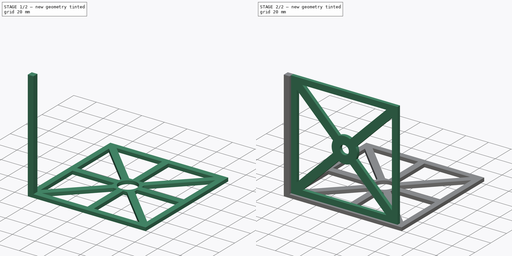
[diagram: build sequence overview — one tinted view per stage of 2, left to right]
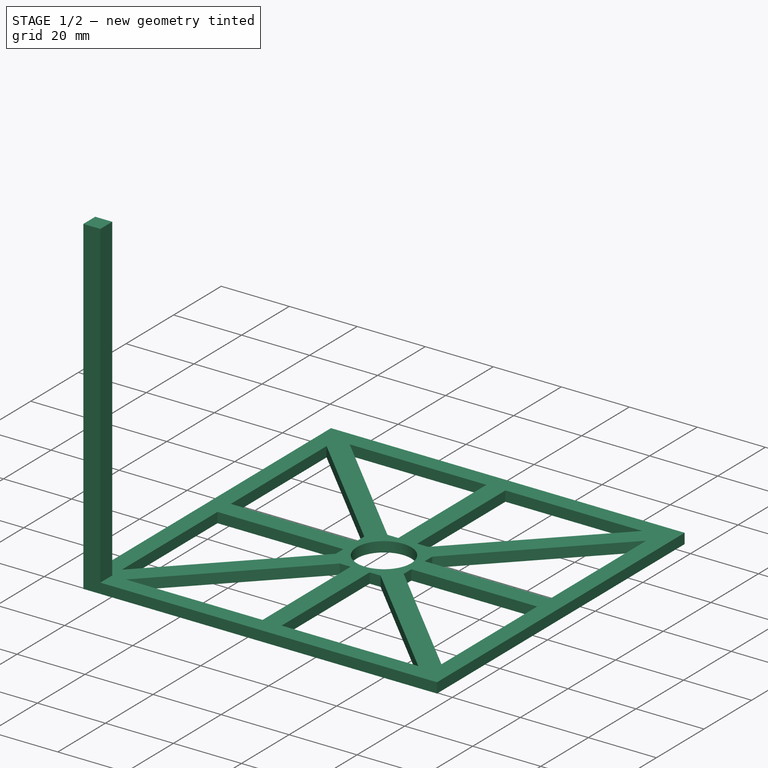
[diagram: stage 1 of 2 — iso view after this stage's code; geometry added in this stage tinted green]
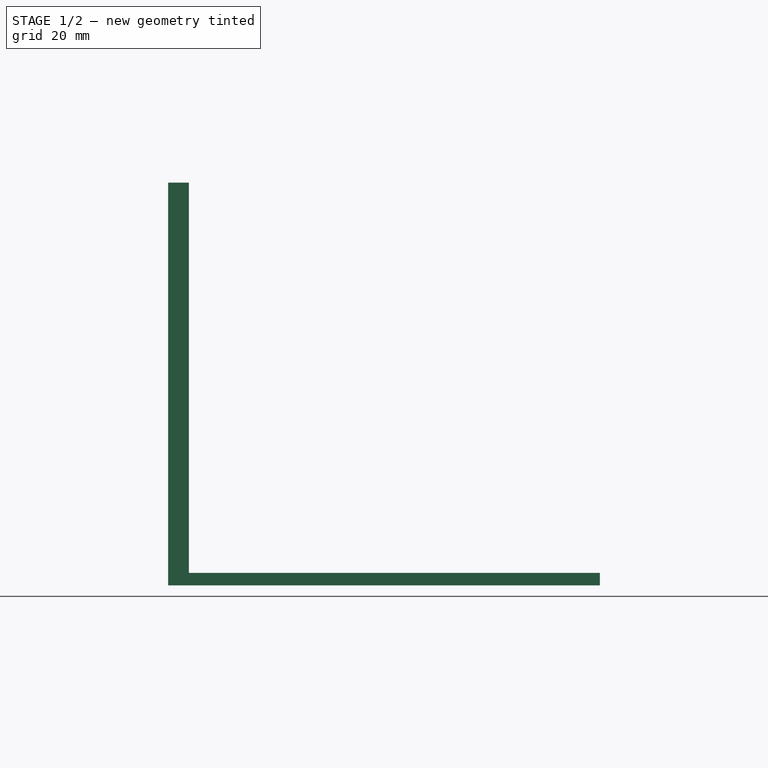
[diagram: stage 1 of 2 — front view after this stage's code; geometry added in this stage tinted green]
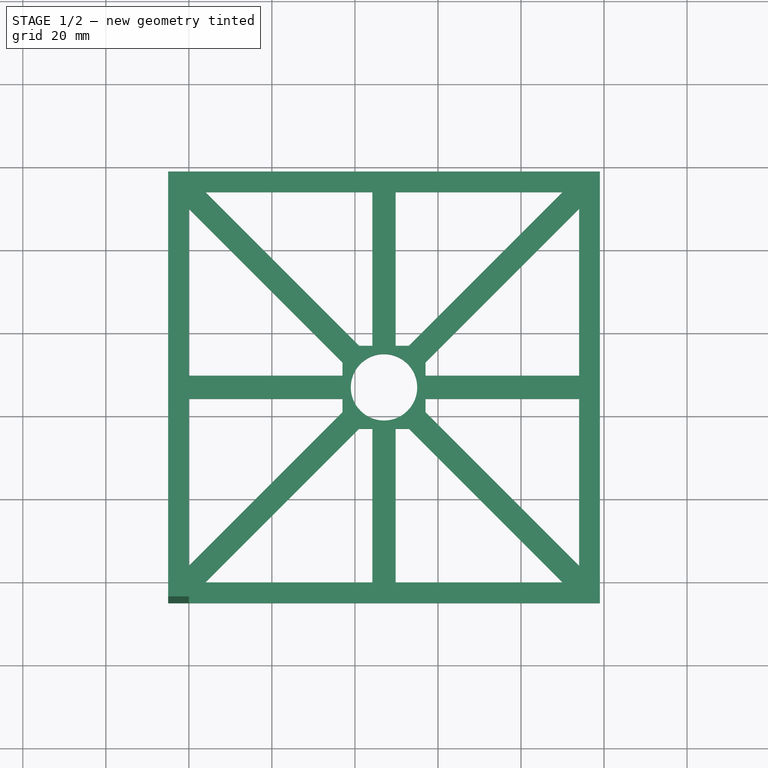
[diagram: stage 1 of 2 — top view after this stage's code; geometry added in this stage tinted green]
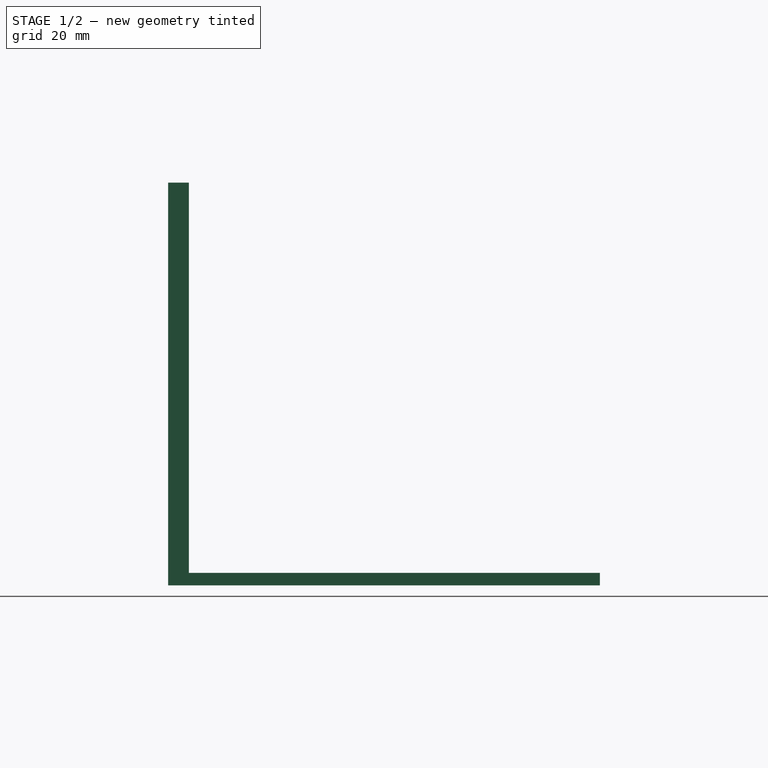
[diagram: stage 1 of 2 — right view after this stage's code; geometry added in this stage tinted green]
FCSTD DOCUMENT  (FreeCAD 1.0R39319 (Git))
Label: shadow-flight-structure
License: All rights reserved
LicenseURL: https://en.wikipedia.org/wiki/All_rights_reserved
objects: Sketcher::SketchObject×5, PartDesign::Pad×3, PartDesign::Body×2
note: 21 computed .brp shape members not serialized (recipe doc carries the construction recipe); baked Part::Feature solids carry a one-line shape summary decoded from their .brp

FEATURE [PartDesign::Body] Body  label="front-side-cover"
  AllowCompound = false
  Group = -> [Sketch,Sketch001,Pad]
  Origin = -> Origin
  Tip = -> Pad
FEATURE [Sketcher::SketchObject] Sketch003  label="bottom-sketch"
  ArcFitTolerance = 1e-06
  AttachmentSupport = -> [XY_Plane001]
  FullyConstrained = true
  MakeInternals = false
  MapMode = 5
  sketch-geometry (51):
    g0: LineSegment StartX=-5 StartY=99 StartZ=0 EndX=-5 EndY=-5 EndZ=0
    g1: LineSegment StartX=-5 StartY=-5 StartZ=0 EndX=99 EndY=-5 EndZ=0
    g2: LineSegment StartX=99 StartY=-5 StartZ=0 EndX=99 EndY=99 EndZ=0
    g3: LineSegment StartX=99 StartY=99 StartZ=0 EndX=-5 EndY=99 EndZ=0
    g4: LineSegment [constr] StartX=0 StartY=0 StartZ=0 EndX=94 EndY=0 EndZ=0
    g5: LineSegment [constr] StartX=94 StartY=0 StartZ=0 EndX=94 EndY=94 EndZ=0
    g6: LineSegment [constr] StartX=0 StartY=94 StartZ=0 EndX=0 EndY=0 EndZ=0
    g7: LineSegment [constr] StartX=37 StartY=37 StartZ=0 EndX=57 EndY=37 EndZ=0
    g8: LineSegment [constr] StartX=57 StartY=37 StartZ=0 EndX=57 EndY=57 EndZ=0
    g9: LineSegment [constr] StartX=57 StartY=57 StartZ=0 EndX=37 EndY=57 EndZ=0
    g10: LineSegment [constr] StartX=37 StartY=57 StartZ=0 EndX=37 EndY=37 EndZ=0
    g11: GeomPoint X=47 Y=47 Z=0
    g12: LineSegment StartX=37 StartY=53 StartZ=0 EndX=0 EndY=90 EndZ=0
    g13: LineSegment StartX=41 StartY=57 StartZ=0 EndX=4 EndY=94 EndZ=0
    g14: LineSegment StartX=44.2 StartY=57 StartZ=0 EndX=44.2 EndY=94 EndZ=0
    g15: LineSegment StartX=49.8 StartY=57 StartZ=0 EndX=49.8 EndY=94 EndZ=0
    g16: LineSegment StartX=37 StartY=41 StartZ=0 EndX=0 EndY=4 EndZ=0
    g17: LineSegment StartX=41 StartY=37 StartZ=0 EndX=4 EndY=0 EndZ=0
    g18: LineSegment StartX=57 StartY=41 StartZ=0 EndX=94 EndY=4 EndZ=0
    g19: LineSegment StartX=53 StartY=37 StartZ=0 EndX=90 EndY=0 EndZ=0
    g20: LineSegment StartX=57 StartY=53 StartZ=0 EndX=94 EndY=90 EndZ=0
    g21: LineSegment StartX=53 StartY=57 StartZ=0 EndX=90 EndY=94 EndZ=0
    g22: LineSegment StartX=57 StartY=44.2 StartZ=0 EndX=94 EndY=44.2 EndZ=0
    g23: LineSegment StartX=57 StartY=49.8 StartZ=0 EndX=94 EndY=49.8 EndZ=0
    g24: LineSegment StartX=44.2 StartY=37 StartZ=0 EndX=44.2 EndY=0 EndZ=0
    g25: LineSegment StartX=49.8 StartY=37 StartZ=0 EndX=49.8 EndY=0 EndZ=0
    g26: LineSegment StartX=0 StartY=44.2 StartZ=0 EndX=37 EndY=44.2 EndZ=0
    g27: LineSegment StartX=0 StartY=49.8 StartZ=0 EndX=37 EndY=49.8 EndZ=0
    g28: LineSegment [constr] StartX=0 StartY=47 StartZ=0 EndX=94 EndY=47 EndZ=0
    g29: LineSegment [constr] StartX=47 StartY=0 StartZ=0 EndX=47 EndY=94 EndZ=0
    g30: Circle CenterX=47 CenterY=47 CenterZ=0 NormalX=0 NormalY=0 NormalZ=1 AngleXU=0 Radius=8
    g31: LineSegment [constr] StartX=0 StartY=90 StartZ=0 EndX=0 EndY=49.8 EndZ=0
    g32: LineSegment [constr] StartX=0 StartY=44.2 StartZ=0 EndX=0 EndY=4 EndZ=0
    g33: LineSegment [constr] StartX=0 StartY=90 StartZ=0 EndX=0 EndY=49.8 EndZ=0
    g34: LineSegment [constr] StartX=0 StartY=90 StartZ=0 EndX=0 EndY=49.8 EndZ=0
    g35: LineSegment StartX=49.8 StartY=94 StartZ=0 EndX=90 EndY=94 EndZ=0
    g36: LineSegment StartX=4 StartY=94 StartZ=0 EndX=44.2 EndY=94 EndZ=0
    g37: LineSegment StartX=41 StartY=37 StartZ=0 EndX=44.2 EndY=37 EndZ=0
    g38: LineSegment StartX=49.8 StartY=37 StartZ=0 EndX=53 EndY=37 EndZ=0
    g39: LineSegment StartX=57 StartY=41 StartZ=0 EndX=57 EndY=44.2 EndZ=0
    g40: LineSegment StartX=57 StartY=53 StartZ=0 EndX=57 EndY=49.8 EndZ=0
    g41: LineSegment StartX=94 StartY=90 StartZ=0 EndX=94 EndY=49.8 EndZ=0
    g42: LineSegment StartX=94 StartY=44.2 StartZ=0 EndX=94 EndY=4 EndZ=0
    g43: LineSegment StartX=41 StartY=57 StartZ=0 EndX=44.2 EndY=57 EndZ=0
    g44: LineSegment StartX=90 StartY=0 StartZ=0 EndX=49.8 EndY=0 EndZ=0
    g45: LineSegment StartX=44.2 StartY=0 StartZ=0 EndX=4 EndY=0 EndZ=0
    g46: LineSegment StartX=0 StartY=44.2 StartZ=0 EndX=0 EndY=4 EndZ=0
    g47: LineSegment StartX=0 StartY=90 StartZ=0 EndX=0 EndY=49.8 EndZ=0
    g48: LineSegment StartX=37 StartY=53 StartZ=0 EndX=37 EndY=49.8 EndZ=0
    g49: LineSegment StartX=37 StartY=44.2 StartZ=0 EndX=37 EndY=41 EndZ=0
    g50: LineSegment StartX=49.8 StartY=57 StartZ=0 EndX=53 EndY=57 EndZ=0
  constraints (135):
    c: Coincident(g0,g1)
    c: Coincident(g1,g2)
    c: Coincident(g2,g3)
    c: Coincident(g3,g0)
    c: Vertical(g0)
    c: Vertical(g2)
    c: Horizontal(g1)
    c: Horizontal(g3)
    c: DistanceX(g3,g3) = 104
    c: Equal(g3,g0)
    c: Distance(g0,g-2) = 5
    c: Distance(g1,g-1) = 5
    c: Coincident(g4,g5)
    c: Coincident(g6,g4)
    c: Horizontal(g4)
    c: Vertical(g5)
    c: PointOnObject(g4,g-1)
    c: Tangent(g6,g-2)
    c: Distance(g2,g5) = 5
    c: Distance(g5,g3) = 5
    c: Coincident(g7,g8)
    c: Coincident(g8,g9)
    c: Coincident(g9,g10)
    c: Coincident(g10,g7)
    c: Horizontal(g7)
    c: Horizontal(g9)
    c: Vertical(g8)
    c: Vertical(g10)
    c: DistanceY(g10,g10) = 20
    c: Equal(g10,g9)
    c: Symmetric(g4,g6,g11)
    c: Symmetric(g7,g9,g11)
    c: PointOnObject(g12,g10)
    c: PointOnObject(g12,g6)
    c: PointOnObject(g13,g9)
    c: PointOnObject(g14,g9)
    c: PointOnObject(g15,g9)
    c: PointOnObject(g16,g10)
    c: PointOnObject(g17,g7)
    c: PointOnObject(g17,g4)
    c: PointOnObject(g18,g8)
    c: PointOnObject(g18,g5)
    c: PointOnObject(g19,g7)
    c: PointOnObject(g19,g4)
    c: PointOnObject(g20,g8)
    c: PointOnObject(g20,g5)
    c: PointOnObject(g21,g9)
    c: Parallel(g17,g16)
    c: Parallel(g13,g12)
    c: Parallel(g14,g-2)
    c: Parallel(g15,g14)
    c: Parallel(g24,g-2)
    c: Parallel(g25,g24)
    c: Parallel(g19,g18)
    c: Parallel(g22,g23)
    c: Parallel(g20,g21)
    c: PointOnObject(g26,g10)
    c: PointOnObject(g27,g10)
    c: Parallel(g26,g27)
    c: Distance(g27,g26) = 5.6
    c: Distance(g9,g12) = 4
    c: Distance(g13,g9) = 4
    c: DistanceY(g12,g6) = 4
    c: Symmetric(g6,g6,g28)
    c: Horizontal(g28)
    c: Symmetric(g26,g27,g28)
    c: Distance(g16,g7) = 4
    c: DistanceX(g7,g17) = 4
    c: Distance(g4,g17) = 4
    c: Symmetric(g4,g4,g29)
    c: Symmetric(g5,g6,g29)
    c: Distance(g25,g24) = 5.6
    c: Symmetric(g25,g24,g29)
    c: Distance(g18,g7) = 4
    c: Distance(g7,g19) = 4
    c: DistanceY(g4,g18) = 4
    c: Distance(g23,g22) = 5.6
    c: Symmetric(g22,g23,g28)
    c: Distance(g20,g8) = 4
    c: Distance(g8,g21) = 4
    c: Distance(g20,g5) = 4
    c: Symmetric(g15,g14,g29)
    c: Distance(g15,g14) = 5.6
    c: Diameter(g30) = 16
    c: Coincident(g30,g11)
    c: Coincident(g31,g12)
    c: Coincident(g31,g27)
    c: Coincident(g32,g26)
    c: Coincident(g32,g16)
    c: Coincident(g33,g12)
    c: Coincident(g33,g27)
    c: Coincident(g34,g12)
    c: Coincident(g34,g27)
    c: Parallel(g35,g3)
    c: Tangent(g40,g39)
    c: Tangent(g38,g37)
    c: Tangent(g42,g41)
    c: Tangent(g46,g47)
    c: Perpendicular(g41,g23)
    c: Perpendicular(g26,g46)
    c: Coincident(g43,g14)
    c: Coincident(g43,g13)
    c: Coincident(g40,g20)
    c: Coincident(g40,g23)
    c: Coincident(g39,g18)
    c: Coincident(g39,g22)
    c: Coincident(g37,g17)
    c: Coincident(g37,g24)
    c: Coincident(g38,g25)
    c: Coincident(g38,g19)
    c: Coincident(g41,g20)
    c: Coincident(g35,g15)
    c: Coincident(g35,g21)
    c: Coincident(g41,g23)
    c: Coincident(g42,g22)
    c: Coincident(g42,g18)
    c: Coincident(g46,g16)
    c: Coincident(g47,g12)
    c: Coincident(g47,g27)
    c: Coincident(g46,g26)
    c: Coincident(g36,g13)
    c: Coincident(g36,g14)
    c: Tangent(g36,g35)
    c: Tangent(g45,g44)
    c: Horizontal(g5,g21)
    c: Coincident(g44,g25)
    c: Coincident(g44,g19)
    c: Coincident(g45,g24)
    c: PointOnObject(g45,g17)
    c: Coincident(g48,g12)
    c: Coincident(g48,g27)
    c: Coincident(g49,g26)
    c: Coincident(g49,g16)
    c: Coincident(g50,g15)
    c: Coincident(g50,g21)
FEATURE [PartDesign::Pad] Pad001
  Direction = (0,0,1)
  Length = 3
  Length2 = 10
  Profile = -> Sketch003
  ReferenceAxis = -> Sketch003 [N_Axis]
  Refine = true
  Reversed = true
  Suppressed = false
  Type = 0
FEATURE [Sketcher::SketchObject] Sketch004
  ArcFitTolerance = 1e-06
  AttachmentSupport = -> [Pad001]
  FullyConstrained = false
  MakeInternals = false
  MapMode = 5
  sketch-geometry (4):
    g0: LineSegment StartX=93.9867 StartY=0 StartZ=0 EndX=93.9867 EndY=-4.99993 EndZ=0
    g1: LineSegment StartX=93.9867 StartY=-4.99993 StartZ=0 EndX=99 EndY=-4.99993 EndZ=0
    g2: LineSegment StartX=99 StartY=-4.99993 StartZ=0 EndX=99 EndY=0 EndZ=0
    g3: LineSegment StartX=99 StartY=0 StartZ=0 EndX=93.9867 EndY=0 EndZ=0
  constraints (9):
    c: Coincident(g0,g1)
    c: Coincident(g1,g2)
    c: Coincident(g2,g3)
    c: Coincident(g3,g0)
    c: Vertical(g0)
    c: Vertical(g2)
    c: Horizontal(g1)
    c: Horizontal(g3)
    c: PointOnObject(g0,g-1)
FEATURE [Sketcher::SketchObject] Sketch005
  ArcFitTolerance = 1e-06
  FullyConstrained = false
  MakeInternals = false
  MapMode = 5
  sketch-geometry (4):
    g0: LineSegment StartX=0 StartY=0 StartZ=0 EndX=-4.99998 EndY=0 EndZ=0
    g1: LineSegment StartX=-4.99998 StartY=0 StartZ=0 EndX=-4.99998 EndY=-4.99983 EndZ=0
    g2: LineSegment StartX=-4.99998 StartY=-4.99983 StartZ=0 EndX=0 EndY=-4.99983 EndZ=0
    g3: LineSegment StartX=0 StartY=-4.99983 StartZ=0 EndX=0 EndY=0 EndZ=0
  constraints (9):
    c: Coincident(g0,g1)
    c: Coincident(g1,g2)
    c: Coincident(g2,g3)
    c: Coincident(g3,g0)
    c: Horizontal(g0)
    c: Horizontal(g2)
    c: Vertical(g1)
    c: Vertical(g3)
    c: Coincident(g0,g-1)
FEATURE [PartDesign::Pad] Pad002
  BaseFeature = -> Pad001
  Direction = (0,0,1)
  Length = 94
  Length2 = 10
  Profile = -> Sketch005
  ReferenceAxis = -> Sketch005 [N_Axis]
  Refine = true
  Suppressed = false
  Type = 0
FEATURE [PartDesign::Body] Body001  label="bottom-chassis"
  AllowCompound = false
  Group = -> [Sketch003,Pad001,Sketch004,Sketch005,Pad002]
  Origin = -> Origin001
  Tip = -> Pad002
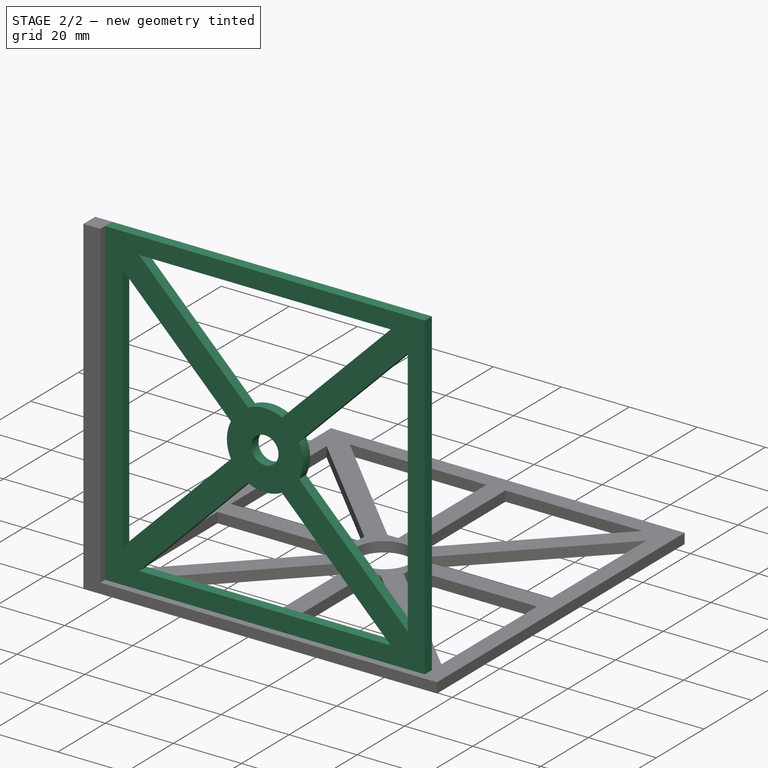
[diagram: stage 2 of 2 — iso view after this stage's code; geometry added in this stage tinted green]
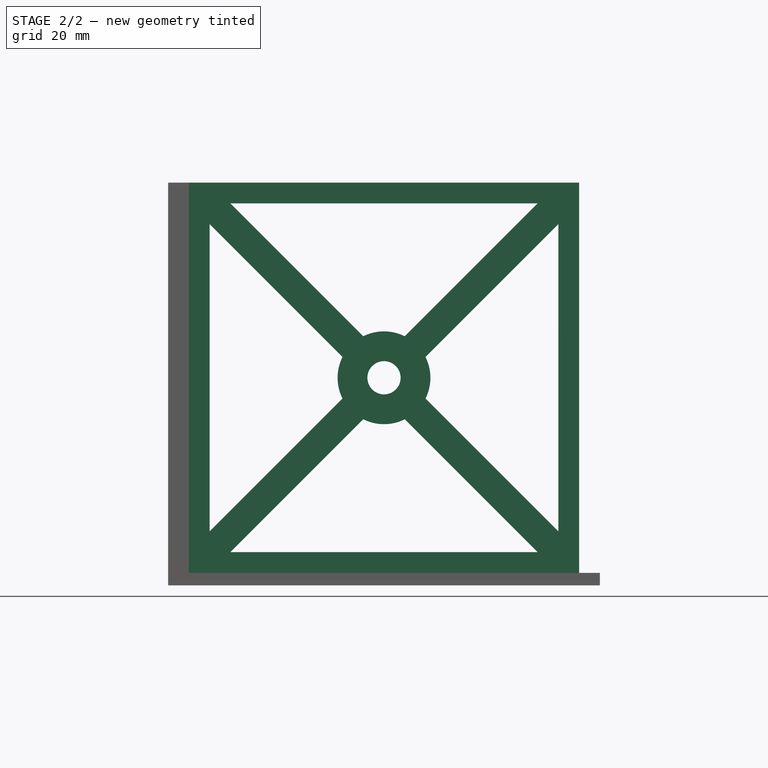
[diagram: stage 2 of 2 — front view after this stage's code; geometry added in this stage tinted green]
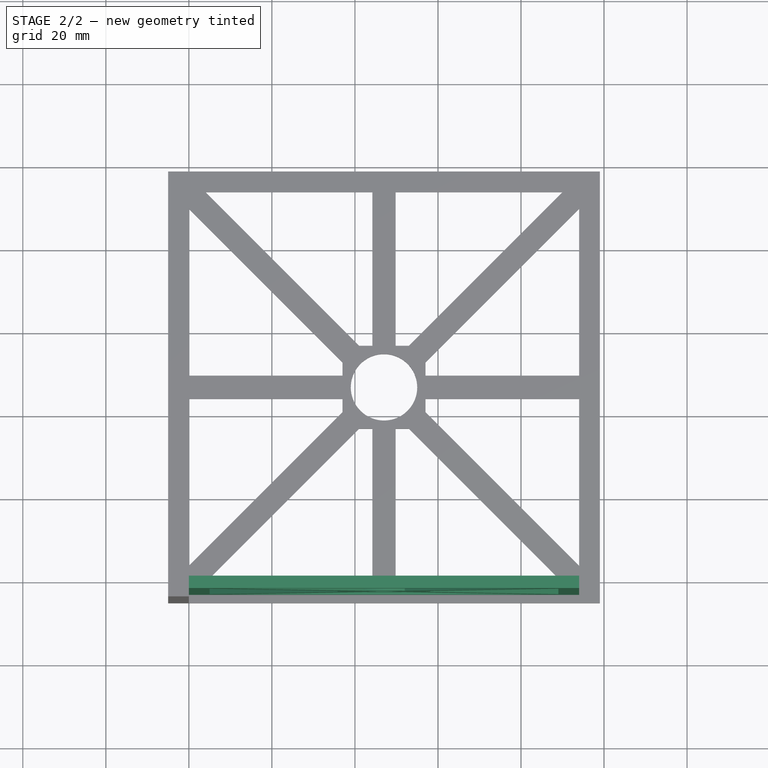
[diagram: stage 2 of 2 — top view after this stage's code; geometry added in this stage tinted green]
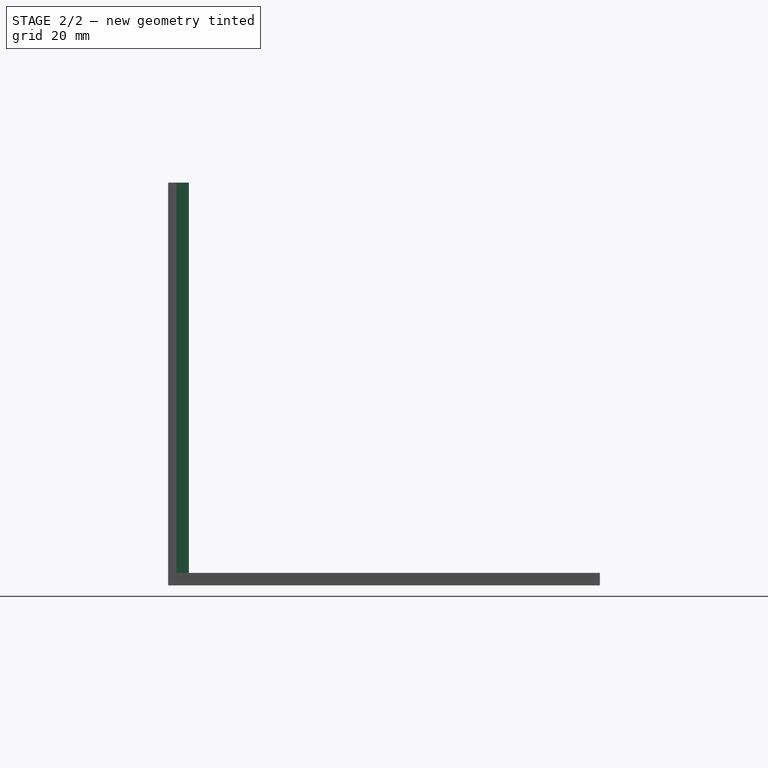
[diagram: stage 2 of 2 — right view after this stage's code; geometry added in this stage tinted green]
FEATURE [Sketcher::SketchObject] Sketch
  ArcFitTolerance = 1e-06
  AttachmentSupport = -> [XZ_Plane]
  FullyConstrained = true
  MakeInternals = false
  MapMode = 5
  Placement = pos=(0,0,0) rot=(1,0,0;1.5708rad)
FEATURE [Sketcher::SketchObject] Sketch001  label="side1-sketch"
  ArcFitTolerance = 1e-06
  AttachmentSupport = -> [XZ_Plane]
  FullyConstrained = true
  MakeInternals = false
  MapMode = 5
  Placement = pos=(0,0,0) rot=(1,0,0;1.5708rad)
  sketch-geometry (32):
    g0: LineSegment StartX=0 StartY=94 StartZ=0 EndX=0 EndY=0 EndZ=0
    g1: LineSegment StartX=0 StartY=0 StartZ=0 EndX=94 EndY=0 EndZ=0
    g2: LineSegment StartX=94 StartY=0 StartZ=0 EndX=94 EndY=94 EndZ=0
    g3: LineSegment StartX=94 StartY=94 StartZ=0 EndX=0 EndY=94 EndZ=0
    g4: LineSegment [constr] StartX=5 StartY=89 StartZ=0 EndX=5 EndY=5 EndZ=0
    g5: LineSegment [constr] StartX=5 StartY=5 StartZ=0 EndX=89 EndY=5 EndZ=0
    g6: LineSegment [constr] StartX=89 StartY=5 StartZ=0 EndX=89 EndY=89 EndZ=0
    g7: LineSegment [constr] StartX=89 StartY=89 StartZ=0 EndX=5 EndY=89 EndZ=0
    g8: LineSegment [constr] StartX=37 StartY=57 StartZ=0 EndX=37 EndY=37 EndZ=0
    g9: LineSegment [constr] StartX=37 StartY=37 StartZ=0 EndX=57 EndY=37 EndZ=0
    g10: LineSegment [constr] StartX=57 StartY=37 StartZ=0 EndX=57 EndY=57 EndZ=0
    g11: LineSegment [constr] StartX=57 StartY=57 StartZ=0 EndX=37 EndY=57 EndZ=0
    g12: GeomPoint X=47 Y=47 Z=0
    g13: LineSegment StartX=10 StartY=89 StartZ=0 EndX=42 EndY=57 EndZ=0
    g14: LineSegment StartX=5 StartY=84 StartZ=0 EndX=37 EndY=52 EndZ=0
    g15: LineSegment StartX=52 StartY=57 StartZ=0 EndX=84 EndY=89 EndZ=0
    g16: LineSegment StartX=57 StartY=52 StartZ=0 EndX=89 EndY=84 EndZ=0
    g17: LineSegment [constr] StartX=5 StartY=47 StartZ=0 EndX=89 EndY=47 EndZ=0
    g18: LineSegment StartX=37 StartY=42 StartZ=0 EndX=5 EndY=10 EndZ=0
    g19: LineSegment StartX=42 StartY=37 StartZ=0 EndX=10 EndY=5 EndZ=0
    g20: LineSegment StartX=57 StartY=42 StartZ=0 EndX=89 EndY=10 EndZ=0
    g21: LineSegment StartX=52 StartY=37 StartZ=0 EndX=84 EndY=5 EndZ=0
    g22: Circle [constr] CenterX=47 CenterY=47 CenterZ=0 NormalX=0 NormalY=0 NormalZ=1 AngleXU=0 Radius=11.1803
    g23: ArcOfCircle CenterX=47 CenterY=47 CenterZ=0 NormalX=0 NormalY=0 NormalZ=1 AngleXU=0 Radius=11.1803 StartAngle=1.10715 EndAngle=2.03444
    g24: ArcOfCircle CenterX=47 CenterY=47 CenterZ=0 NormalX=0 NormalY=0 NormalZ=1 AngleXU=0 Radius=11.1803 StartAngle=5.81954 EndAngle=6.74683
    g25: ArcOfCircle CenterX=47 CenterY=47 CenterZ=0 NormalX=0 NormalY=0 NormalZ=1 AngleXU=0 Radius=11.1804 StartAngle=4.24874 EndAngle=5.17604
    g26: ArcOfCircle CenterX=47 CenterY=47 CenterZ=0 NormalX=0 NormalY=0 NormalZ=1 AngleXU=0 Radius=11.1803 StartAngle=2.67795 EndAngle=3.60524
    g27: Circle CenterX=47 CenterY=47 CenterZ=0 NormalX=0 NormalY=0 NormalZ=1 AngleXU=0 Radius=4
    g28: LineSegment StartX=5 StartY=84 StartZ=0 EndX=5 EndY=10 EndZ=0
    g29: LineSegment StartX=10 StartY=89 StartZ=0 EndX=84 EndY=89 EndZ=0
    g30: LineSegment StartX=89 StartY=84 StartZ=0 EndX=89 EndY=10 EndZ=0
    g31: LineSegment StartX=10 StartY=5 StartZ=0 EndX=84 EndY=5 EndZ=0
  constraints (93):
    c: Coincident(g0,g1)
    c: Coincident(g1,g2)
    c: Coincident(g2,g3)
    c: Coincident(g3,g0)
    c: Vertical(g0)
    c: Vertical(g2)
    c: Horizontal(g1)
    c: Horizontal(g3)
    c: Distance(g0,g2) = 94
    c: Distance(g1,g3) = 94
    c: Coincident(g0,g-1)
    c: Coincident(g4,g5)
    c: Coincident(g5,g6)
    c: Coincident(g6,g7)
    c: Coincident(g7,g4)
    c: Vertical(g4)
    c: Vertical(g6)
    c: Horizontal(g5)
    c: Horizontal(g7)
    c: Coincident(g8,g9)
    c: Coincident(g9,g10)
    c: Coincident(g10,g11)
    c: Coincident(g11,g8)
    c: Vertical(g8)
    c: Vertical(g10)
    c: Horizontal(g9)
    c: Horizontal(g11)
    c: Distance(g3,g7) = 5
    c: Distance(g2,g6) = 5
    c: Distance(g0,g4) = 5
    c: Distance(g1,g5) = 5
    c: Symmetric(g4,g6,g12)
    c: Distance(g11,g11) = 20
    c: DistanceY(g10,g10) = 20
    c: Symmetric(g8,g10,g12)
    c: PointOnObject(g13,g7)
    c: PointOnObject(g13,g11)
    c: PointOnObject(g14,g4)
    c: PointOnObject(g14,g8)
    c: Parallel(g14,g13)
    c: Distance(g13,g4) = 5
    c: DistanceX(g8,g13) = 5
    c: DistanceY(g14,g8) = 5
    c: PointOnObject(g15,g11)
    c: PointOnObject(g15,g7)
    c: PointOnObject(g16,g10)
    c: PointOnObject(g16,g6)
    c: Parallel(g16,g15)
    c: DistanceX(g15,g6) = 5
    c: Distance(g15,g10) = 5
    c: Distance(g6,g16) = 5
    c: Symmetric(g4,g4,g17)
    c: Symmetric(g6,g6,g17)
    c: PointOnObject(g18,g8)
    c: PointOnObject(g18,g4)
    c: PointOnObject(g19,g9)
    c: PointOnObject(g19,g5)
    c: Parallel(g18,g19)
    c: Distance(g18,g9) = 5
    c: DistanceX(g8,g19) = 5
    c: DistanceX(g4,g19) = 5
    c: PointOnObject(g20,g10)
    c: PointOnObject(g20,g6)
    c: PointOnObject(g21,g9)
    c: PointOnObject(g21,g5)
    c: Parallel(g21,g20)
    c: Distance(g20,g9) = 5
    c: Distance(g9,g21) = 5
    c: Distance(g20,g5) = 5
    c: Coincident(g22,g12)
    c: PointOnObject(g20,g22)
    c: Coincident(g23,g13)
    c: Coincident(g23,g15)
    c: Tangent(g23,g22)
    c: Coincident(g24,g16)
    c: Coincident(g24,g20)
    c: Tangent(g24,g22)
    c: Coincident(g25,g19)
    c: Coincident(g25,g21)
    c: Tangent(g25,g22)
    c: Coincident(g26,g14)
    c: Coincident(g26,g18)
    c: Tangent(g26,g22)
    c: Coincident(g27,g23)
    c: Coincident(g28,g14)
    c: Coincident(g28,g18)
    c: Coincident(g29,g13)
    c: Coincident(g29,g15)
    c: Coincident(g30,g16)
    c: Coincident(g30,g20)
    c: Coincident(g31,g19)
    c: Coincident(g31,g21)
    c: Diameter(g27) = 8
FEATURE [PartDesign::Pad] Pad
  Direction = (0,-1,2e-16)
  Length = 3
  Length2 = 10
  Placement = pos=(0,0,0) rot=(1,0,0;1.5708rad)
  Profile = -> Sketch001
  ReferenceAxis = -> Sketch001 [N_Axis]
  Refine = true
  Suppressed = false
  Type = 0
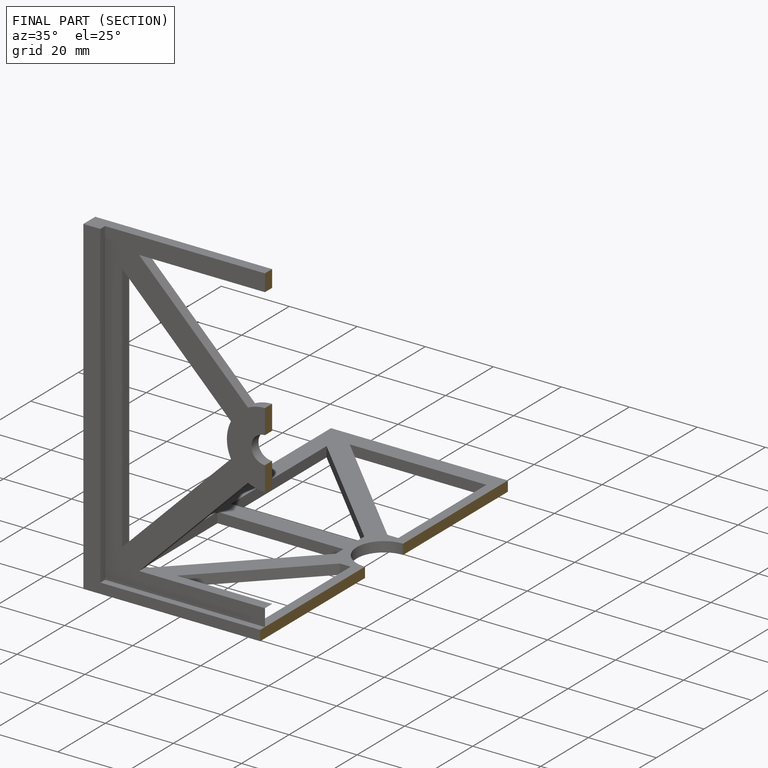
[diagram: finished part — half-section view (interior)]
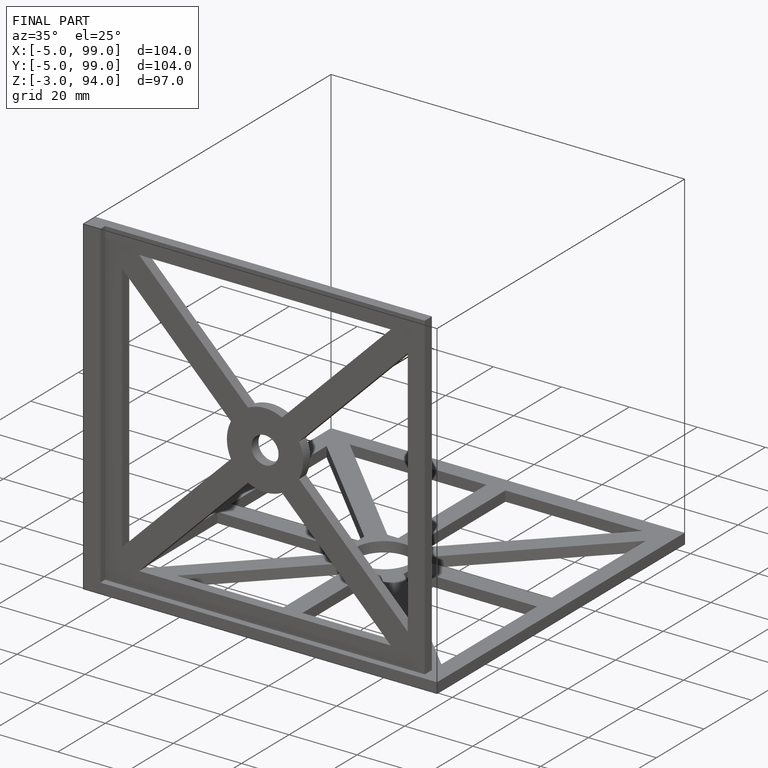
[diagram: finished part — iso view with bounding-box wireframe]
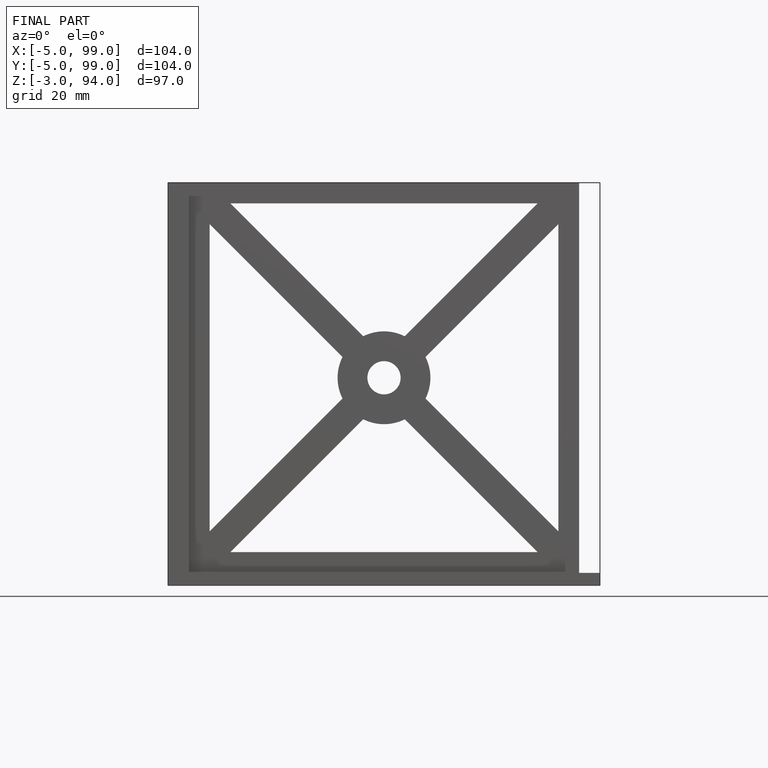
[diagram: finished part — front view with bounding-box wireframe]
